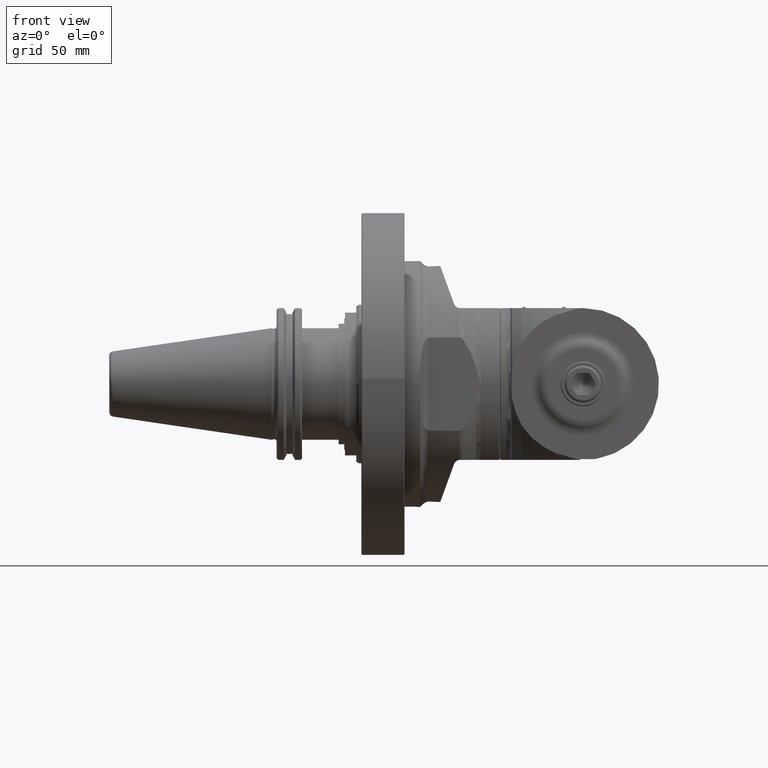
[diagram: clean part render]
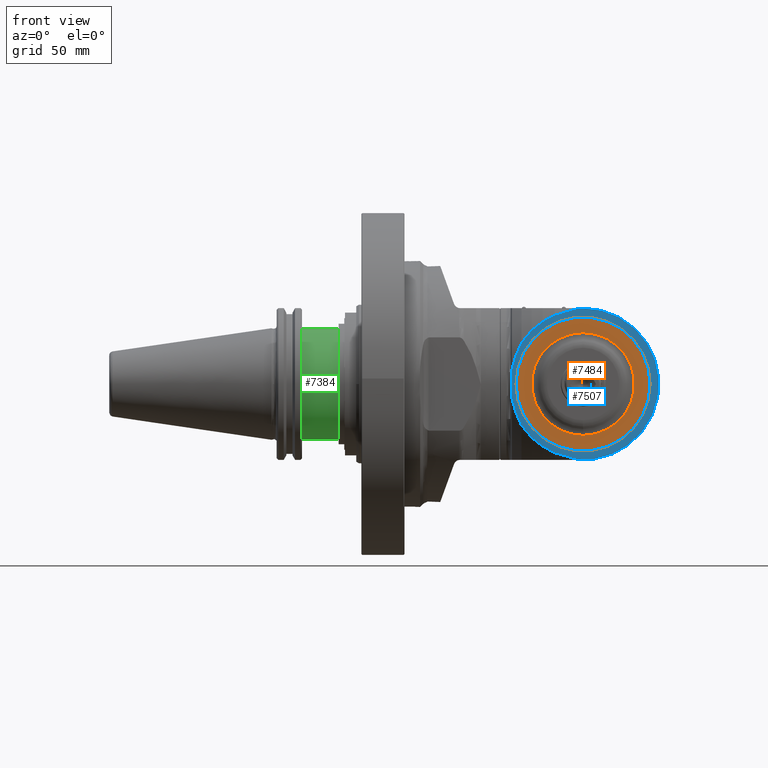
[diagram: same view with three faces highlighted in distinct colors, each labeled with its STEP entity id]
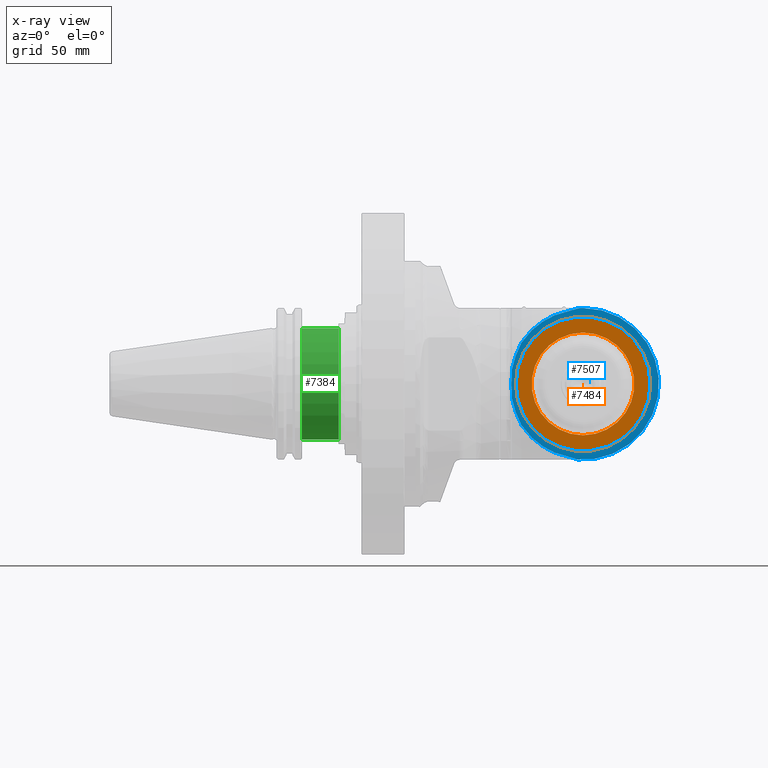
[diagram: x-ray of the same camera — body ghosted, the three highlighted faces saturated]
A machine part, front view with three faces highlighted in distinct colors.
The next image is the same camera in x-ray (body ghosted, the three faces saturated) — at least one of them is partly hidden behind the body in this view.
Their STEP definitions:

[orange] entity #7484 — the highlighted planar face has unit normal (-0, 1, 0).
#211=FACE_BOUND('',#1108,.T.);
#616=FACE_OUTER_BOUND('',#1107,.T.);
#1107=EDGE_LOOP('',(#5621));
#1108=EDGE_LOOP('',(#5622));
#1644=CIRCLE('',#8205,42.);
#1645=CIRCLE('',#8206,32.14359353945);
#3302=VERTEX_POINT('',#12158);
#3303=VERTEX_POINT('',#12160);
#4148=EDGE_CURVE('',#3302,#3302,#1644,.T.);
#4149=EDGE_CURVE('',#3303,#3303,#1645,.T.);
#5621=ORIENTED_EDGE('',*,*,#4148,.T.);
#5622=ORIENTED_EDGE('',*,*,#4149,.T.);
#7205=PLANE('',#8204);
#7484=ADVANCED_FACE('',(#616,#211),#7205,.F.);
#8204=AXIS2_PLACEMENT_3D('',#12157,#9624,#9625);
#8205=AXIS2_PLACEMENT_3D('',#12159,#9626,#9627);
#8206=AXIS2_PLACEMENT_3D('',#12161,#9628,#9629);
#9624=DIRECTION('center_axis',(0.,-1.,-4.660711712401E-9));
#9625=DIRECTION('ref_axis',(-1.,0.,0.));
#9626=DIRECTION('center_axis',(0.,1.,4.660711712401E-9));
#9627=DIRECTION('ref_axis',(1.,0.,0.));
#9628=DIRECTION('center_axis',(0.,-1.,-4.66071146748E-9));
#9629=DIRECTION('ref_axis',(0.,-4.66071146748E-9,1.));
#12157=CARTESIAN_POINT('Origin',(153.464458,70.50000048658,-104.4000020714));
#12158=CARTESIAN_POINT('',(135.,70.5,3.28580170580783E-7));
#12159=CARTESIAN_POINT('Origin',(93.,70.5,3.285801757243E-7));
#12160=CARTESIAN_POINT('',(93.,70.499999850188,32.1435938680302));
#12161=CARTESIAN_POINT('Origin',(93.,70.5,3.285801766207E-7));

[blue] entity #7507 — the highlighted planar face has unit normal (0, -1, -0).
#105=B_SPLINE_CURVE_WITH_KNOTS('',3,(#12292,#12293,#12294,#12295,#12296,
#12297),.UNSPECIFIED.,.F.,.F.,(4,1,1,4),(0.,0.3333333333333,0.6666666666667,
1.),.UNSPECIFIED.);
#106=B_SPLINE_CURVE_WITH_KNOTS('',3,(#12299,#12300,#12301,#12302,#12303,
#12304,#12305,#12306,#12307,#12308),.UNSPECIFIED.,.F.,.F.,(4,3,3,4),(0.,
0.3333333333333,0.6666666666667,1.),.UNSPECIFIED.);
#107=B_SPLINE_CURVE_WITH_KNOTS('',3,(#12310,#12311,#12312,#12313,#12314,
#12315),.UNSPECIFIED.,.F.,.F.,(4,1,1,4),(0.,0.3333333333333,0.6666666666667,
1.),.UNSPECIFIED.);
#108=B_SPLINE_CURVE_WITH_KNOTS('',3,(#12317,#12318,#12319,#12320,#12321,
#12322),.UNSPECIFIED.,.F.,.F.,(4,1,1,4),(0.,0.3333333333333,0.6666666666667,
1.),.UNSPECIFIED.);
#109=B_SPLINE_CURVE_WITH_KNOTS('',3,(#12333,#12334,#12335,#12336,#12337,
#12338),.UNSPECIFIED.,.F.,.F.,(4,1,1,4),(0.,0.3333333333333,0.6666666666667,
1.),.UNSPECIFIED.);
#110=B_SPLINE_CURVE_WITH_KNOTS('',3,(#12340,#12341,#12342,#12343,#12344,
#12345),.UNSPECIFIED.,.F.,.F.,(4,1,1,4),(0.,0.3333333333333,0.6666666666667,
1.),.UNSPECIFIED.);
#111=B_SPLINE_CURVE_WITH_KNOTS('',3,(#12347,#12348,#12349,#12350,#12351,
#12352,#12353,#12354,#12355,#12356),.UNSPECIFIED.,.F.,.F.,(4,3,3,4),(0.,
0.3333333333333,0.6666666666667,1.),.UNSPECIFIED.);
#112=B_SPLINE_CURVE_WITH_KNOTS('',3,(#12357,#12358,#12359,#12360,#12361,
#12362),.UNSPECIFIED.,.F.,.F.,(4,1,1,4),(0.,0.3333333333333,0.6666666666667,
1.),.UNSPECIFIED.);
#216=FACE_BOUND('',#1136,.T.);
#639=FACE_OUTER_BOUND('',#1135,.T.);
#1135=EDGE_LOOP('',(#5712,#5713,#5714,#5715,#5716,#5717,#5718,#5719,#5720,
#5721,#5722,#5723,#5724,#5725,#5726,#5727));
#1136=EDGE_LOOP('',(#5728));
#1662=CIRCLE('',#8245,42.);
#1663=CIRCLE('',#8247,47.5);
#1664=CIRCLE('',#8248,47.5);
#1665=CIRCLE('',#8249,47.5);
#2091=LINE('',#12326,#2591);
#2092=LINE('',#12328,#2592);
#2591=VECTOR('',#9732,0.649358484059802);
#2592=VECTOR('',#9733,8.383865785912);
#2952=(
BOUNDED_CURVE()
B_SPLINE_CURVE(2,(#12280,#12281,#12282),.UNSPECIFIED.,.F.,.F.)
B_SPLINE_CURVE_WITH_KNOTS((3,3),(10.0330021019086,13.016735635697),
 .UNSPECIFIED.)
CURVE()
GEOMETRIC_REPRESENTATION_ITEM()
RATIONAL_B_SPLINE_CURVE((1.40374967034038,1.43281507365968,1.4434597034475))
REPRESENTATION_ITEM('')
);
#2953=(
BOUNDED_CURVE()
B_SPLINE_CURVE(2,(#12284,#12285,#12286),.UNSPECIFIED.,.F.,.F.)
B_SPLINE_CURVE_WITH_KNOTS((3,3),(21.8583089644572,26.1348070470034),
 .UNSPECIFIED.)
CURVE()
GEOMETRIC_REPRESENTATION_ITEM()
RATIONAL_B_SPLINE_CURVE((2.13874727790893,2.15697523766328,2.13874727790893))
REPRESENTATION_ITEM('')
);
#2954=(
BOUNDED_CURVE()
B_SPLINE_CURVE(2,(#12288,#12289,#12290),.UNSPECIFIED.,.F.,.F.)
B_SPLINE_CURVE_WITH_KNOTS((3,3),(16.4650966720449,19.4488302058322),
 .UNSPECIFIED.)
CURVE()
GEOMETRIC_REPRESENTATION_ITEM()
RATIONAL_B_SPLINE_CURVE((1.4434597034475,1.43281507365969,1.4037496703404))
REPRESENTATION_ITEM('')
);
#3216=VERTEX_POINT('',#11844);
#3332=VERTEX_POINT('',#12274);
#3333=VERTEX_POINT('',#12278);
#3334=VERTEX_POINT('',#12279);
#3335=VERTEX_POINT('',#12283);
#3336=VERTEX_POINT('',#12287);
#3337=VERTEX_POINT('',#12291);
#3338=VERTEX_POINT('',#12298);
#3339=VERTEX_POINT('',#12309);
#3340=VERTEX_POINT('',#12316);
#3341=VERTEX_POINT('',#12323);
#3342=VERTEX_POINT('',#12325);
#3343=VERTEX_POINT('',#12327);
#3344=VERTEX_POINT('',#12330);
#3345=VERTEX_POINT('',#12332);
#3346=VERTEX_POINT('',#12339);
#3347=VERTEX_POINT('',#12346);
#4195=EDGE_CURVE('',#3332,#3332,#1662,.T.);
#4196=EDGE_CURVE('',#3333,#3334,#2952,.T.);
#4197=EDGE_CURVE('',#3334,#3335,#2953,.T.);
#4198=EDGE_CURVE('',#3335,#3336,#2954,.T.);
#4199=EDGE_CURVE('',#3336,#3337,#105,.T.);
#4200=EDGE_CURVE('',#3337,#3338,#106,.T.);
#4201=EDGE_CURVE('',#3338,#3339,#107,.T.);
#4202=EDGE_CURVE('',#3339,#3340,#108,.T.);
#4203=EDGE_CURVE('',#3340,#3341,#1663,.T.);
#4204=EDGE_CURVE('',#3342,#3341,#2091,.T.);
#4205=EDGE_CURVE('',#3342,#3343,#2092,.T.);
#4206=EDGE_CURVE('',#3343,#3216,#1664,.T.);
#4207=EDGE_CURVE('',#3216,#3344,#1665,.T.);
#4208=EDGE_CURVE('',#3344,#3345,#109,.T.);
#4209=EDGE_CURVE('',#3345,#3346,#110,.T.);
#4210=EDGE_CURVE('',#3346,#3347,#111,.T.);
#4211=EDGE_CURVE('',#3347,#3333,#112,.T.);
#5712=ORIENTED_EDGE('',*,*,#4196,.T.);
#5713=ORIENTED_EDGE('',*,*,#4197,.T.);
#5714=ORIENTED_EDGE('',*,*,#4198,.T.);
#5715=ORIENTED_EDGE('',*,*,#4199,.T.);
#5716=ORIENTED_EDGE('',*,*,#4200,.T.);
#5717=ORIENTED_EDGE('',*,*,#4201,.T.);
#5718=ORIENTED_EDGE('',*,*,#4202,.T.);
#5719=ORIENTED_EDGE('',*,*,#4203,.T.);
#5720=ORIENTED_EDGE('',*,*,#4204,.F.);
#5721=ORIENTED_EDGE('',*,*,#4205,.T.);
#5722=ORIENTED_EDGE('',*,*,#4206,.T.);
#5723=ORIENTED_EDGE('',*,*,#4207,.T.);
#5724=ORIENTED_EDGE('',*,*,#4208,.T.);
#5725=ORIENTED_EDGE('',*,*,#4209,.T.);
#5726=ORIENTED_EDGE('',*,*,#4210,.T.);
#5727=ORIENTED_EDGE('',*,*,#4211,.T.);
#5728=ORIENTED_EDGE('',*,*,#4195,.T.);
#7218=PLANE('',#8246);
#7507=ADVANCED_FACE('',(#639,#216),#7218,.T.);
#8245=AXIS2_PLACEMENT_3D('',#12276,#9726,#9727);
#8246=AXIS2_PLACEMENT_3D('',#12277,#9728,#9729);
#8247=AXIS2_PLACEMENT_3D('',#12324,#9730,#9731);
#8248=AXIS2_PLACEMENT_3D('',#12329,#9734,#9735);
#8249=AXIS2_PLACEMENT_3D('',#12331,#9736,#9737);
#9726=DIRECTION('center_axis',(0.,-1.,-4.660711712401E-9));
#9727=DIRECTION('ref_axis',(-1.,0.,0.));
#9728=DIRECTION('center_axis',(0.,1.,4.660711712401E-9));
#9729=DIRECTION('ref_axis',(-1.,0.,0.));
#9730=DIRECTION('center_axis',(0.,1.,4.660711712401E-9));
#9731=DIRECTION('ref_axis',(-0.0574274353345828,-4.65302006092098E-9,0.998349683062449));
#9732=DIRECTION('',(-0.707106781186498,-3.29562342805199E-9,0.707106781186597));
#9733=DIRECTION('',(1.,0.,0.));
#9734=DIRECTION('center_axis',(0.,1.,4.660711712401E-9));
#9735=DIRECTION('ref_axis',(0.144712963913895,-4.61165155691795E-9,0.989473677302866));
#9736=DIRECTION('center_axis',(0.,1.,4.660711712401E-9));
#9737=DIRECTION('ref_axis',(0.,4.660711712401E-9,-1.));
#11844=CARTESIAN_POINT('',(92.9999999999984,70.4000002213835,-47.4999997128994));
#12274=CARTESIAN_POINT('',(135.,70.4,3.28114099409543E-7));
#12276=CARTESIAN_POINT('Origin',(93.,70.4,3.28114104553E-7));
#12277=CARTESIAN_POINT('Origin',(0.,70.4,3.281140999005E-7));
#12278=CARTESIAN_POINT('',(54.4659587661,70.40000012054,-25.861940821));
#12279=CARTESIAN_POINT('',(48.53571489205,70.40000004293,-9.210862823622));
#12280=CARTESIAN_POINT('Ctrl Pts',(54.4659587660899,70.4000001205351,-25.8619408209648));
#12281=CARTESIAN_POINT('Ctrl Pts',(50.0931228572593,70.400000080669,-17.3083048634258));
#12282=CARTESIAN_POINT('Ctrl Pts',(48.5357148920545,70.4000000429292,-9.21086282362114));
#12283=CARTESIAN_POINT('',(48.53571489205,70.39999995707,9.21086347985));
#12284=CARTESIAN_POINT('Ctrl Pts',(48.5357148920417,70.4000000429292,-9.2108628234807));
#12285=CARTESIAN_POINT('Ctrl Pts',(47.8458219788507,70.4,3.28113886283177E-7));
#12286=CARTESIAN_POINT('Ctrl Pts',(48.5357148920417,70.3999999570708,9.21086347970846));
#12287=CARTESIAN_POINT('',(54.4659587661,70.39999987946,25.86194147722));
#12288=CARTESIAN_POINT('Ctrl Pts',(48.5357148920544,70.3999999570708,9.21086347984911));
#12289=CARTESIAN_POINT('Ctrl Pts',(50.0931228572586,70.399999919331,17.3083055196509));
#12290=CARTESIAN_POINT('Ctrl Pts',(54.4659587660866,70.399999879465,25.8619414771865));
#12291=CARTESIAN_POINT('',(60.89947952763,70.39999984348,33.5833295258));
#12292=CARTESIAN_POINT('Ctrl Pts',(54.4659587661,70.39999987946,25.86194147722));
#12293=CARTESIAN_POINT('Ctrl Pts',(55.08352794642,70.39999987557,26.69707959551));
#12294=CARTESIAN_POINT('Ctrl Pts',(56.38295332162,70.39999986772,28.382954629));
#12295=CARTESIAN_POINT('Ctrl Pts',(58.52628294923,70.39999985572,30.95661921904));
#12296=CARTESIAN_POINT('Ctrl Pts',(60.08649657245,70.39999984758,32.70283868148));
#12297=CARTESIAN_POINT('Ctrl Pts',(60.89947952763,70.39999984348,33.5833295258));
#12298=CARTESIAN_POINT('',(67.76817506157,70.39999981805,39.0395956129));
#12299=CARTESIAN_POINT('Ctrl Pts',(60.8994795276313,70.3999998434769,33.5833295257985));
#12300=CARTESIAN_POINT('Ctrl Pts',(61.6103593278017,70.3999998406759,34.184271822658));
#12301=CARTESIAN_POINT('Ctrl Pts',(62.3387581763596,70.3999999312861,34.7868839854867));
#12302=CARTESIAN_POINT('Ctrl Pts',(63.084572116841,70.3999998350507,35.3912510950651));
#12303=CARTESIAN_POINT('Ctrl Pts',(63.8303860573227,70.3999997388153,35.9956182046437));
#12304=CARTESIAN_POINT('Ctrl Pts',(64.593614974637,70.3999997392072,36.6017404011486));
#12305=CARTESIAN_POINT('Ctrl Pts',(65.3742345495311,70.3999998265752,37.2097601594652));
#12306=CARTESIAN_POINT('Ctrl Pts',(66.154854124425,70.3999999139432,37.8177799177817));
#12307=CARTESIAN_POINT('Ctrl Pts',(66.9528644673804,70.3999998208991,38.4276970941695));
#12308=CARTESIAN_POINT('Ctrl Pts',(67.7681750615701,70.3999998180498,39.0395956128999));
#12309=CARTESIAN_POINT('',(75.23227667671,70.39999979953,43.01267287935));
#12310=CARTESIAN_POINT('Ctrl Pts',(67.76817506157,70.39999981805,39.0395956129));
#12311=CARTESIAN_POINT('Ctrl Pts',(68.56632034393,70.39999981599,39.48058179051));
#12312=CARTESIAN_POINT('Ctrl Pts',(70.18351221124,70.39999981188,40.36267413079));
#12313=CARTESIAN_POINT('Ctrl Pts',(72.6714550614,70.39999980571,41.68663904586));
#12314=CARTESIAN_POINT('Ctrl Pts',(74.37177379504,70.39999980159,42.57042852018));
#12315=CARTESIAN_POINT('Ctrl Pts',(75.23227667671,70.39999979953,43.01267287935));
#12316=CARTESIAN_POINT('',(90.27219682161,70.39999977898,47.42161027358));
#12317=CARTESIAN_POINT('Ctrl Pts',(75.23227667671,70.39999979953,43.01267287935));
#12318=CARTESIAN_POINT('Ctrl Pts',(76.84479195384,70.39999979725,43.50253501647));
#12319=CARTESIAN_POINT('Ctrl Pts',(80.10896367488,70.39999979268,44.48196424991));
#12320=CARTESIAN_POINT('Ctrl Pts',(85.12159901853,70.39999978584,45.95095245071));
#12321=CARTESIAN_POINT('Ctrl Pts',(88.54228364322,70.39999978127,46.93118077055));
#12322=CARTESIAN_POINT('Ctrl Pts',(90.27219682161,70.39999977898,47.42161027358));
#12323=CARTESIAN_POINT('',(91.0308342125,70.39999977881,47.4591657875));
#12324=CARTESIAN_POINT('Origin',(93.,70.4,3.28114104553E-7));
#12325=CARTESIAN_POINT('',(91.49,70.39999978095,47.));
#12326=CARTESIAN_POINT('',(91.49,70.39999978095,47.));
#12327=CARTESIAN_POINT('',(99.87386578591,70.39999978095,47.));
#12328=CARTESIAN_POINT('',(91.49,70.39999978095,47.));
#12329=CARTESIAN_POINT('Origin',(93.,70.4,3.28114104553E-7));
#12330=CARTESIAN_POINT('',(90.27219682161,70.40000022102,-47.42160961735));
#12331=CARTESIAN_POINT('Origin',(93.,70.4,3.28114104553E-7));
#12332=CARTESIAN_POINT('',(75.23227667671,70.40000020047,-43.01267222312));
#12333=CARTESIAN_POINT('Ctrl Pts',(90.27219682161,70.40000022102,-47.42160961735));
#12334=CARTESIAN_POINT('Ctrl Pts',(88.54253492796,70.40000021873,-46.93125135342));
#12335=CARTESIAN_POINT('Ctrl Pts',(85.12218449348,70.40000021416,-45.95112085517));
#12336=CARTESIAN_POINT('Ctrl Pts',(80.10954396286,70.40000020732,-44.48213618084));
#12337=CARTESIAN_POINT('Ctrl Pts',(76.84504019026,70.40000020275,-43.50260977138));
#12338=CARTESIAN_POINT('Ctrl Pts',(75.23227667671,70.40000020047,-43.01267222312));
#12339=CARTESIAN_POINT('',(67.76817506157,70.40000018195,-39.03959495667));
#12340=CARTESIAN_POINT('Ctrl Pts',(75.23227667671,70.40000020047,-43.01267222312));
#12341=CARTESIAN_POINT('Ctrl Pts',(74.37185665955,70.40000019841,-42.5704704511));
#12342=CARTESIAN_POINT('Ctrl Pts',(72.67164759856,70.40000019429,-41.68673927857));
#12343=CARTESIAN_POINT('Ctrl Pts',(70.18370148789,70.40000018812,-40.36277577314));
#12344=CARTESIAN_POINT('Ctrl Pts',(68.56640104042,70.40000018401,-39.48062572019));
#12345=CARTESIAN_POINT('Ctrl Pts',(67.76817506157,70.40000018195,-39.03959495667));
#12346=CARTESIAN_POINT('',(60.89947952763,70.40000015652,-33.58332886957));
#12347=CARTESIAN_POINT('Ctrl Pts',(67.7681750615685,70.4000001819536,-39.039594956672));
#12348=CARTESIAN_POINT('Ctrl Pts',(66.9529928716703,70.4000001790994,-38.4277928066096));
#12349=CARTESIAN_POINT('Ctrl Pts',(66.1550663860719,70.4000002609811,-37.8179420938445));
#12350=CARTESIAN_POINT('Ctrl Pts',(65.3744865691305,70.400000173426,-37.2099557993907));
#12351=CARTESIAN_POINT('Ctrl Pts',(64.5939067521888,70.4000000858709,-36.6019695049367));
#12352=CARTESIAN_POINT('Ctrl Pts',(63.8306734999425,70.4000000804943,-35.9958477640398));
#12353=CARTESIAN_POINT('Ctrl Pts',(63.084816485474,70.4000001649504,-35.3914484613975));
#12354=CARTESIAN_POINT('Ctrl Pts',(62.3389594710057,70.4000002494065,-34.7870491587555));
#12355=CARTESIAN_POINT('Ctrl Pts',(61.6104788016483,70.4000001593242,-34.184372163652));
#12356=CARTESIAN_POINT('Ctrl Pts',(60.8994795276297,70.4000001565207,-33.5833288695703));
#12357=CARTESIAN_POINT('Ctrl Pts',(60.89947952763,70.40000015652,-33.58332886957));
#12358=CARTESIAN_POINT('Ctrl Pts',(60.08656057251,70.40000015242,-32.70290733971));
#12359=CARTESIAN_POINT('Ctrl Pts',(58.52642752358,70.40000014428,-30.95678436595));
#12360=CARTESIAN_POINT('Ctrl Pts',(56.38307952584,70.40000013229,-28.38311311439));
#12361=CARTESIAN_POINT('Ctrl Pts',(55.083579632,70.40000012443,-26.69714883363));
#12362=CARTESIAN_POINT('Ctrl Pts',(54.4659587661,70.40000012054,-25.861940821));

[green] entity #7384 — the highlighted cylindrical surface (bore or boss wall) has radius 34.925 mm, axis along (1, 0, 0).
#257=CYLINDRICAL_SURFACE('',#7980,34.925);
#516=FACE_OUTER_BOUND('',#989,.T.);
#989=EDGE_LOOP('',(#5086,#5087,#5088,#5089));
#1480=CIRCLE('',#7905,34.925);
#1522=CIRCLE('',#7981,34.925);
#1934=LINE('',#11378,#2434);
#2434=VECTOR('',#9043,34.925);
#3029=VERTEX_POINT('',#11201);
#3075=VERTEX_POINT('',#11376);
#3762=EDGE_CURVE('',#3029,#3029,#1480,.T.);
#3836=EDGE_CURVE('',#3075,#3075,#1522,.T.);
#3837=EDGE_CURVE('',#3075,#3029,#1934,.T.);
#5086=ORIENTED_EDGE('',*,*,#3836,.F.);
#5087=ORIENTED_EDGE('',*,*,#3837,.T.);
#5088=ORIENTED_EDGE('',*,*,#3762,.F.);
#5089=ORIENTED_EDGE('',*,*,#3837,.F.);
#7384=ADVANCED_FACE('',(#516),#257,.T.);
#7905=AXIS2_PLACEMENT_3D('',#11202,#8862,#8863);
#7980=AXIS2_PLACEMENT_3D('',#11375,#9039,#9040);
#7981=AXIS2_PLACEMENT_3D('',#11377,#9041,#9042);
#8862=DIRECTION('center_axis',(-1.,0.,0.));
#8863=DIRECTION('ref_axis',(0.,0.,1.));
#9039=DIRECTION('center_axis',(1.,0.,0.));
#9040=DIRECTION('ref_axis',(0.,0.,1.));
#9041=DIRECTION('center_axis',(1.,0.,0.));
#9042=DIRECTION('ref_axis',(0.,0.,-1.));
#9043=DIRECTION('',(-1.,0.,0.));
#11201=CARTESIAN_POINT('',(19.05,0.,-34.925));
#11202=CARTESIAN_POINT('Origin',(19.05,0.,0.));
#11375=CARTESIAN_POINT('Origin',(32.,0.,0.));
#11376=CARTESIAN_POINT('',(42.,0.,-34.925));
#11377=CARTESIAN_POINT('Origin',(42.,0.,0.));
#11378=CARTESIAN_POINT('',(32.,4.27707894602213E-15,-34.925));